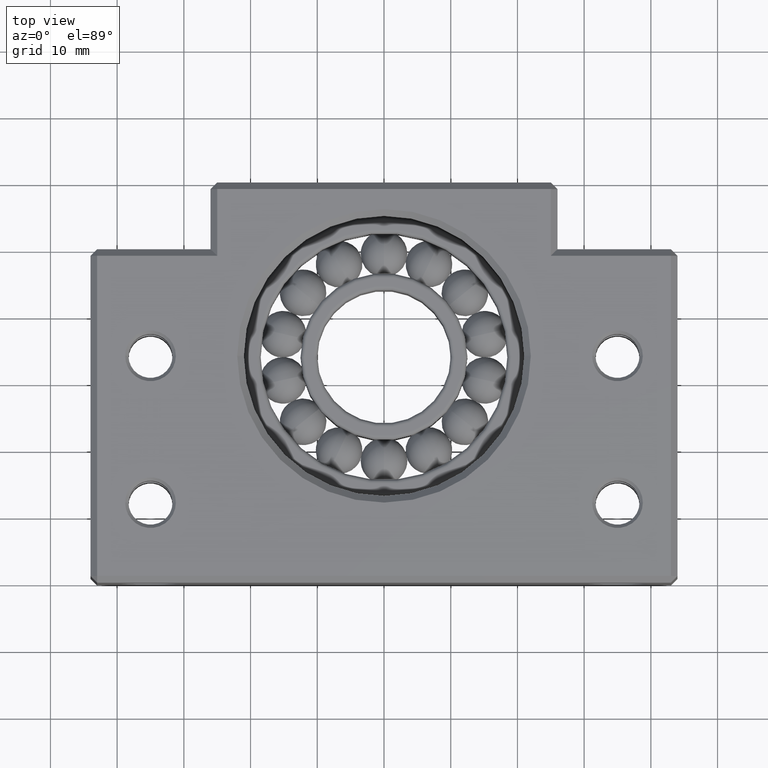
[diagram: clean part render]
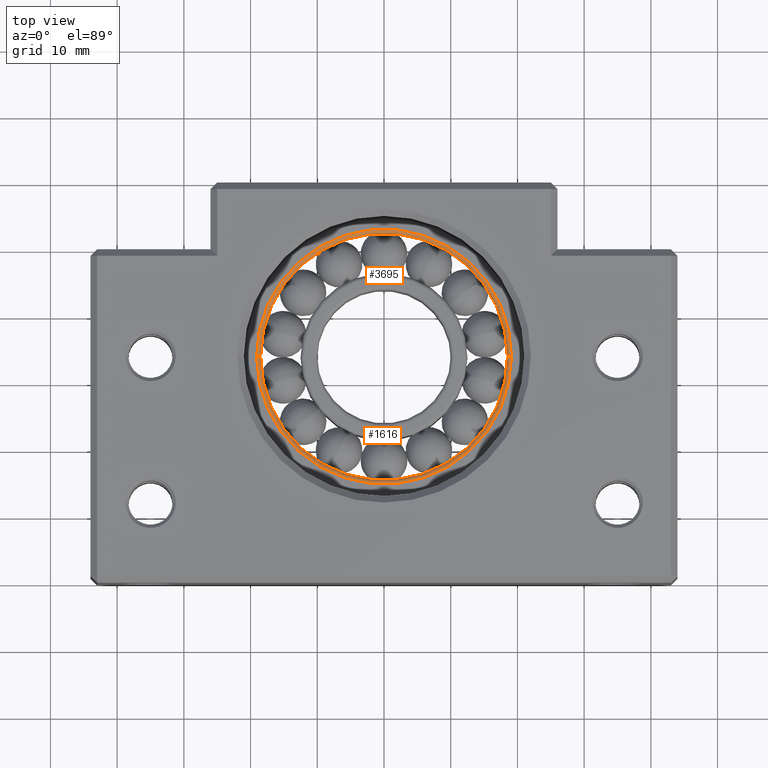
[diagram: same view with one multi-face feature highlighted, each face labeled with its STEP entity id]
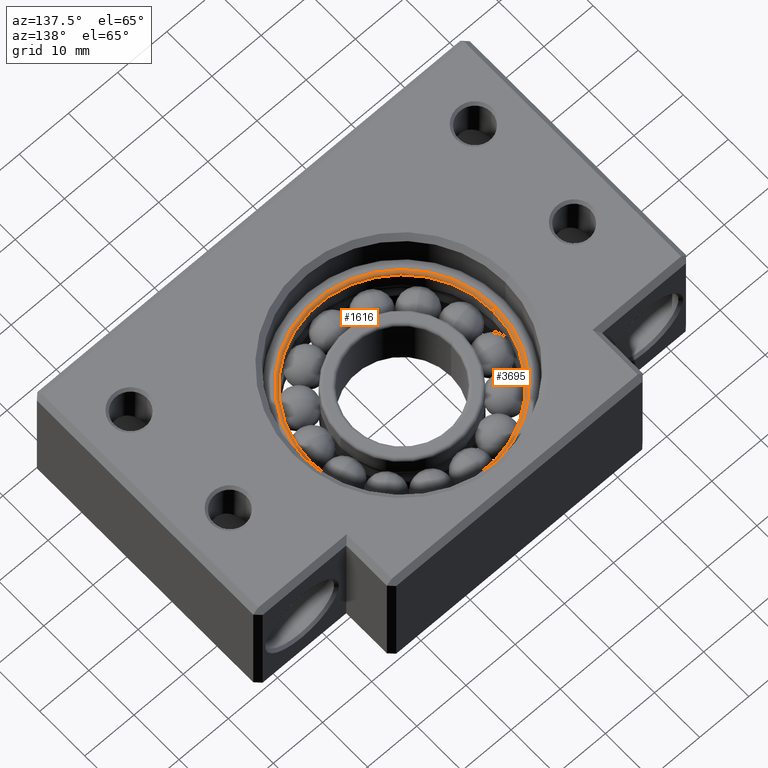
[diagram: same view with one multi-face feature highlighted, each face labeled with its STEP entity id]
A machine part, top view. The highlighted faces form ONE feature: a constant-radius fillet chain: 2 tangent blend faces with common blend radius 0.6 mm. The faces share edges in the B-rep.
A second angle (auxiliary view) of the same feature is appended — it is thin or edge-on in the first view.
Their STEP definitions:
[1] entity #3695 (Torus):
#485 = DIRECTION ( 'NONE',  ( -1.000000000000000000, 0.0000000000000000000, 0.0000000000000000000 ) ) ;
#486 = DIRECTION ( 'NONE',  ( 1.224606353822377300E-016, 1.000000000000000000, 0.0000000000000000000 ) ) ;
#487 = CARTESIAN_POINT ( 'NONE',  ( -19.09999999999998400, 34.00000000000000000, 5.399999999999998600 ) ) ;
#488 = AXIS2_PLACEMENT_3D ( 'NONE', #487, #486, #485 ) ;
#489 = CIRCLE ( 'NONE', #488, 0.5999999999999998700 ) ;
#490 = CARTESIAN_POINT ( 'NONE',  ( -18.49999999999998600, 34.00000000000000000, 5.399999999999998600 ) ) ;
#495 = DIRECTION ( 'NONE',  ( 1.000000000000000000, 0.0000000000000000000, 0.0000000000000000000 ) ) ;
#496 = DIRECTION ( 'NONE',  ( -0.0000000000000000000, -0.0000000000000000000, 1.000000000000000000 ) ) ;
#497 = CARTESIAN_POINT ( 'NONE',  ( 1.377740456500814400E-014, 34.00000000000000000, 5.399999999999998600 ) ) ;
#498 = AXIS2_PLACEMENT_3D ( 'NONE', #497, #496, #495 ) ;
#499 = CIRCLE ( 'NONE', #498, 18.50000000000000000 ) ;
#526 = CARTESIAN_POINT ( 'NONE',  ( 18.50000000000001400, 34.00000000000000000, 5.399999999999998600 ) ) ;
#527 = CARTESIAN_POINT ( 'NONE',  ( -19.09999999999998400, 34.00000000000000000, 5.999999999999998200 ) ) ;
#542 = DIRECTION ( 'NONE',  ( 0.0000000000000000000, 0.0000000000000000000, -1.000000000000000000 ) ) ;
#543 = DIRECTION ( 'NONE',  ( 0.0000000000000000000, -1.000000000000000000, 0.0000000000000000000 ) ) ;
#544 = CARTESIAN_POINT ( 'NONE',  ( 19.10000000000001200, 34.00000000000000000, 5.399999999999998600 ) ) ;
#545 = AXIS2_PLACEMENT_3D ( 'NONE', #544, #543, #542 ) ;
#546 = CIRCLE ( 'NONE', #545, 0.5999999999999998700 ) ;
#547 = CARTESIAN_POINT ( 'NONE',  ( 19.10000000000001200, 34.00000000000000000, 5.999999999999998200 ) ) ;
#604 = DIRECTION ( 'NONE',  ( 1.000000000000000000, 0.0000000000000000000, 0.0000000000000000000 ) ) ;
#605 = DIRECTION ( 'NONE',  ( -0.0000000000000000000, -0.0000000000000000000, 1.000000000000000000 ) ) ;
#606 = CARTESIAN_POINT ( 'NONE',  ( 1.377740456500814400E-014, 34.00000000000000000, 5.999999999999998200 ) ) ;
#607 = AXIS2_PLACEMENT_3D ( 'NONE', #606, #605, #604 ) ;
#608 = CIRCLE ( 'NONE', #607, 19.09999999999999800 ) ;
#837 = FACE_OUTER_BOUND ( 'NONE', #3840, .T. ) ;
#890 = DIRECTION ( 'NONE',  ( 1.000000000000000000, 0.0000000000000000000, 0.0000000000000000000 ) ) ;
#891 = DIRECTION ( 'NONE',  ( -0.0000000000000000000, -0.0000000000000000000, 1.000000000000000000 ) ) ;
#892 = CARTESIAN_POINT ( 'NONE',  ( 1.377740456500814400E-014, 34.00000000000000000, 5.399999999999998600 ) ) ;
#893 = AXIS2_PLACEMENT_3D ( 'NONE', #892, #891, #890 ) ;
#895 = TOROIDAL_SURFACE ( 'NONE', #893, 19.09999999999999800, 0.5999999999999998700 ) ;
#3518 = EDGE_CURVE ( 'NONE', #3538, #3520, #499, .T. ) ;
#3520 = VERTEX_POINT ( 'NONE', #490 ) ;
#3522 = ORIENTED_EDGE ( 'NONE', *, *, #3527, .F. ) ;
#3523 = EDGE_CURVE ( 'NONE', #3537, #3520, #489, .T. ) ;
#3525 = ORIENTED_EDGE ( 'NONE', *, *, #3523, .T. ) ;
#3526 = VERTEX_POINT ( 'NONE', #547 ) ;
#3527 = EDGE_CURVE ( 'NONE', #3526, #3538, #546, .T. ) ;
#3536 = ORIENTED_EDGE ( 'NONE', *, *, #3518, .F. ) ;
#3537 = VERTEX_POINT ( 'NONE', #527 ) ;
#3538 = VERTEX_POINT ( 'NONE', #526 ) ;
#3556 = ORIENTED_EDGE ( 'NONE', *, *, #3559, .T. ) ;
#3559 = EDGE_CURVE ( 'NONE', #3526, #3537, #608, .T. ) ;
#3695 = ADVANCED_FACE ( 'NONE', ( #837 ), #895, .T. ) ;
#3840 = EDGE_LOOP ( 'NONE', ( #3556, #3525, #3536, #3522 ) ) ;
[2] entity #1616 (Torus):
#127 = DIRECTION ( 'NONE',  ( 1.000000000000000000, 0.0000000000000000000, 0.0000000000000000000 ) ) ;
#128 = DIRECTION ( 'NONE',  ( -0.0000000000000000000, -0.0000000000000000000, 1.000000000000000000 ) ) ;
#129 = CARTESIAN_POINT ( 'NONE',  ( 1.377740456500814400E-014, 34.00000000000000000, 5.999999999999998200 ) ) ;
#130 = AXIS2_PLACEMENT_3D ( 'NONE', #129, #128, #127 ) ;
#131 = CIRCLE ( 'NONE', #130, 19.09999999999999800 ) ;
#133 = DIRECTION ( 'NONE',  ( 1.000000000000000000, 0.0000000000000000000, 0.0000000000000000000 ) ) ;
#134 = DIRECTION ( 'NONE',  ( -0.0000000000000000000, -0.0000000000000000000, 1.000000000000000000 ) ) ;
#135 = AXIS2_PLACEMENT_3D ( 'NONE', #141, #134, #133 ) ;
#136 = TOROIDAL_SURFACE ( 'NONE', #135, 19.09999999999999800, 0.5999999999999998700 ) ;
#137 = FACE_OUTER_BOUND ( 'NONE', #1619, .T. ) ;
#141 = CARTESIAN_POINT ( 'NONE',  ( 1.377740456500814400E-014, 34.00000000000000000, 5.399999999999998600 ) ) ;
#485 = DIRECTION ( 'NONE',  ( -1.000000000000000000, 0.0000000000000000000, 0.0000000000000000000 ) ) ;
#486 = DIRECTION ( 'NONE',  ( 1.224606353822377300E-016, 1.000000000000000000, 0.0000000000000000000 ) ) ;
#487 = CARTESIAN_POINT ( 'NONE',  ( -19.09999999999998400, 34.00000000000000000, 5.399999999999998600 ) ) ;
#488 = AXIS2_PLACEMENT_3D ( 'NONE', #487, #486, #485 ) ;
#489 = CIRCLE ( 'NONE', #488, 0.5999999999999998700 ) ;
#490 = CARTESIAN_POINT ( 'NONE',  ( -18.49999999999998600, 34.00000000000000000, 5.399999999999998600 ) ) ;
#526 = CARTESIAN_POINT ( 'NONE',  ( 18.50000000000001400, 34.00000000000000000, 5.399999999999998600 ) ) ;
#527 = CARTESIAN_POINT ( 'NONE',  ( -19.09999999999998400, 34.00000000000000000, 5.999999999999998200 ) ) ;
#542 = DIRECTION ( 'NONE',  ( 0.0000000000000000000, 0.0000000000000000000, -1.000000000000000000 ) ) ;
#543 = DIRECTION ( 'NONE',  ( 0.0000000000000000000, -1.000000000000000000, 0.0000000000000000000 ) ) ;
#544 = CARTESIAN_POINT ( 'NONE',  ( 19.10000000000001200, 34.00000000000000000, 5.399999999999998600 ) ) ;
#545 = AXIS2_PLACEMENT_3D ( 'NONE', #544, #543, #542 ) ;
#546 = CIRCLE ( 'NONE', #545, 0.5999999999999998700 ) ;
#547 = CARTESIAN_POINT ( 'NONE',  ( 19.10000000000001200, 34.00000000000000000, 5.999999999999998200 ) ) ;
#663 = DIRECTION ( 'NONE',  ( 1.000000000000000000, 0.0000000000000000000, 0.0000000000000000000 ) ) ;
#664 = DIRECTION ( 'NONE',  ( -0.0000000000000000000, -0.0000000000000000000, 1.000000000000000000 ) ) ;
#665 = CARTESIAN_POINT ( 'NONE',  ( 1.377740456500814400E-014, 34.00000000000000000, 5.399999999999998600 ) ) ;
#666 = AXIS2_PLACEMENT_3D ( 'NONE', #665, #664, #663 ) ;
#667 = CIRCLE ( 'NONE', #666, 18.50000000000000000 ) ;
#1616 = ADVANCED_FACE ( 'NONE', ( #137 ), #136, .T. ) ;
#1619 = EDGE_LOOP ( 'NONE', ( #1620, #1622, #1625, #1628 ) ) ;
#1620 = ORIENTED_EDGE ( 'NONE', *, *, #3523, .F. ) ;
#1622 = ORIENTED_EDGE ( 'NONE', *, *, #1624, .T. ) ;
#1624 = EDGE_CURVE ( 'NONE', #3537, #3526, #131, .T. ) ;
#1625 = ORIENTED_EDGE ( 'NONE', *, *, #3527, .T. ) ;
#1628 = ORIENTED_EDGE ( 'NONE', *, *, #3596, .F. ) ;
#3520 = VERTEX_POINT ( 'NONE', #490 ) ;
#3523 = EDGE_CURVE ( 'NONE', #3537, #3520, #489, .T. ) ;
#3526 = VERTEX_POINT ( 'NONE', #547 ) ;
#3527 = EDGE_CURVE ( 'NONE', #3526, #3538, #546, .T. ) ;
#3537 = VERTEX_POINT ( 'NONE', #527 ) ;
#3538 = VERTEX_POINT ( 'NONE', #526 ) ;
#3596 = EDGE_CURVE ( 'NONE', #3520, #3538, #667, .T. ) ;